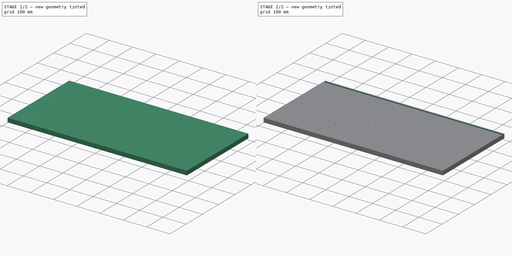
[diagram: build sequence overview — one tinted view per stage of 2, left to right]
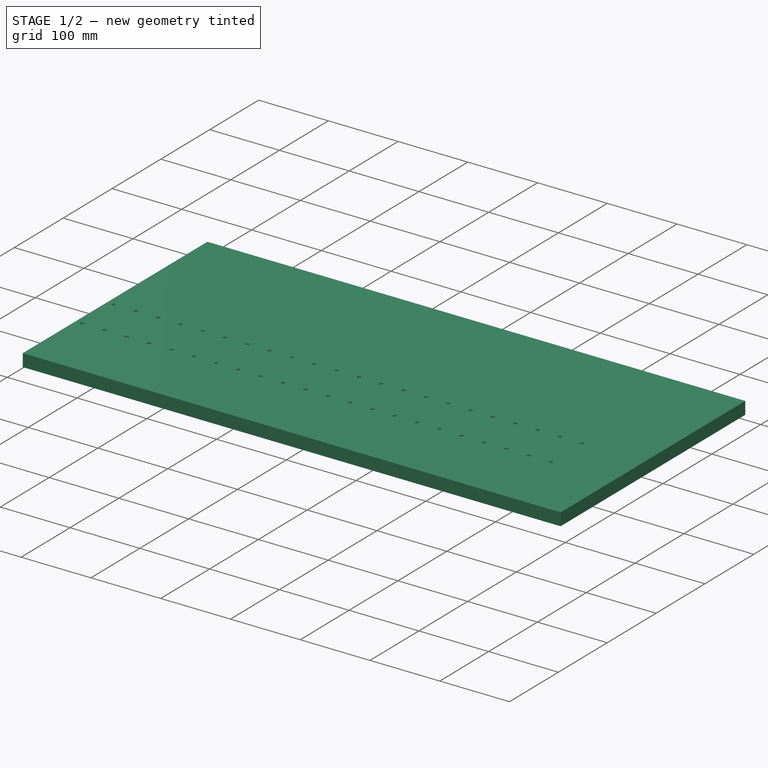
[diagram: stage 1 of 2 — iso view after this stage's code; geometry added in this stage tinted green]
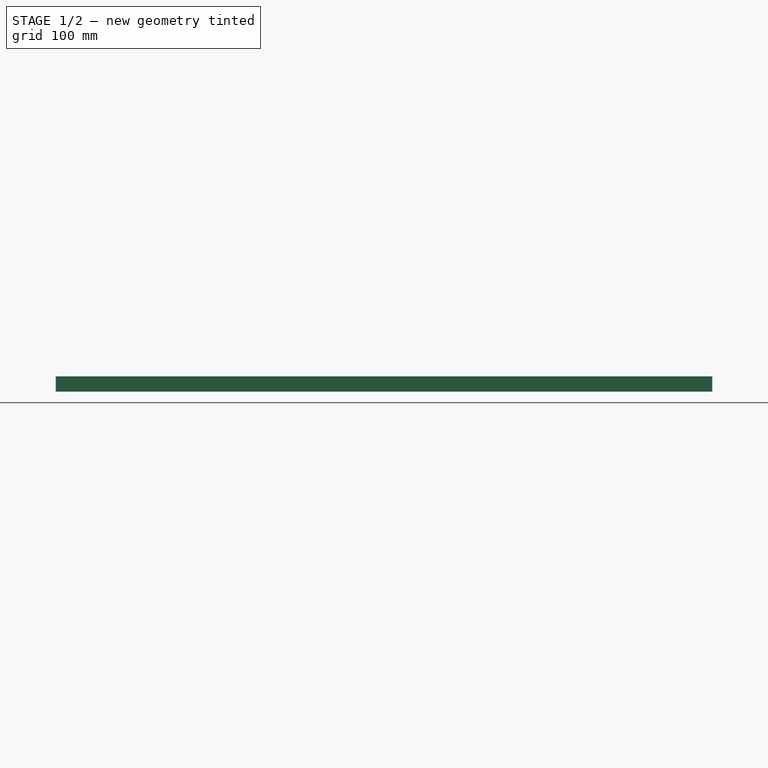
[diagram: stage 1 of 2 — front view after this stage's code; geometry added in this stage tinted green]
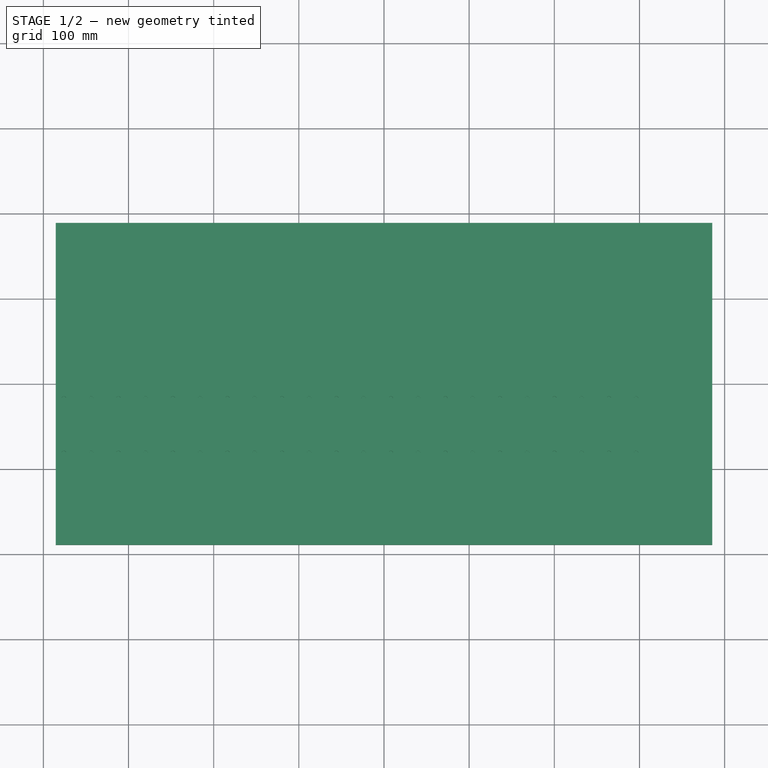
[diagram: stage 1 of 2 — top view after this stage's code; geometry added in this stage tinted green]
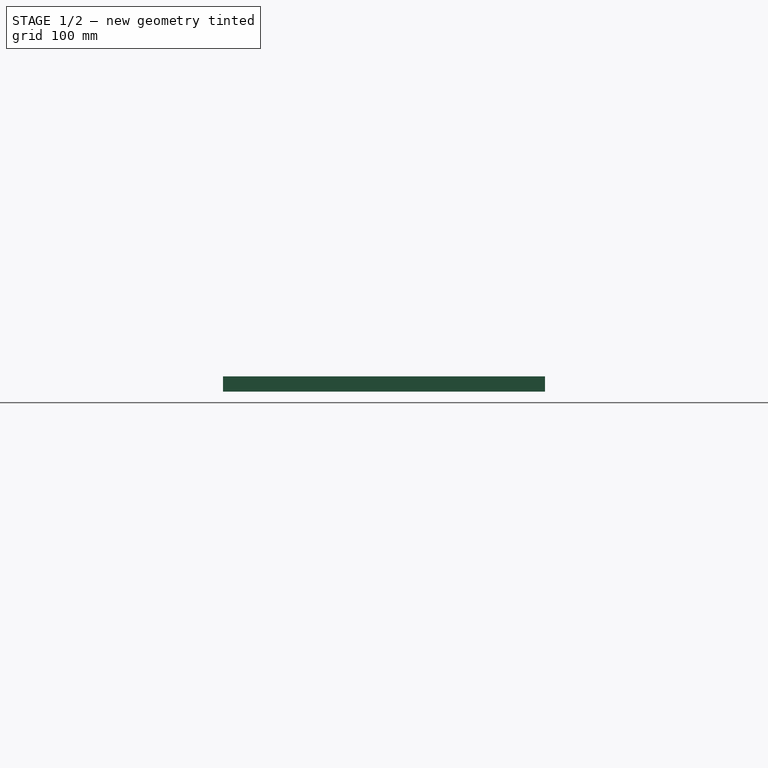
[diagram: stage 1 of 2 — right view after this stage's code; geometry added in this stage tinted green]
FCSTD DOCUMENT  (FreeCAD 1.0R39109 (Git))
Label: 73_drawer_box_side_b
License: All rights reserved
LicenseURL: http://en.wikipedia.org/wiki/All_rights_reserved
objects: Sketcher::SketchObject×3, PartDesign::Pocket×2, Spreadsheet::Sheet×1, PartDesign::Pad×1, PartDesign::Body×1
note: 16 computed .brp shape members not serialized (recipe doc carries the construction recipe); baked Part::Feature solids carry a one-line shape summary decoded from their .brp

FEATURE [Spreadsheet::Sheet] Spreadsheet
  cells = A2='length; B2(length)=771; A3='width; B3(width)=378; A4='height; B4(height)=18; A5='euro32Distance; B5(euro32Distance)=32; A6='euro32Holedia; B6(euro32Holedia)=5
FEATURE [Sketcher::SketchObject] Sketch
  ArcFitTolerance = 0
  AttachmentSupport = -> [XY_Plane]
  FullyConstrained = true
  MakeInternals = false
  MapMode = 5
  expr: Constraints[11] = Spreadsheet.length
  expr: Constraints[12] = Spreadsheet.width
  sketch-geometry (5):
    g0: LineSegment StartX=-385.5 StartY=189 StartZ=0 EndX=385.5 EndY=189 EndZ=0
    g1: LineSegment StartX=385.5 StartY=189 StartZ=0 EndX=385.5 EndY=-189 EndZ=0
    g2: LineSegment StartX=385.5 StartY=-189 StartZ=0 EndX=-385.5 EndY=-189 EndZ=0
    g3: LineSegment StartX=-385.5 StartY=-189 StartZ=0 EndX=-385.5 EndY=189 EndZ=0
    g4: LineSegment [constr] StartX=-385.5 StartY=189 StartZ=0 EndX=385.5 EndY=-189 EndZ=0
  constraints (13):
    c: Coincident(g0,g1)
    c: Coincident(g1,g2)
    c: Coincident(g2,g3)
    c: Coincident(g3,g0)
    c: Horizontal(g0)
    c: Horizontal(g2)
    c: Vertical(g1)
    c: Vertical(g3)
    c: Coincident(g4,g1)
    c: Coincident(g0,g4)
    c: Symmetric(g0,g1,g-1)
    c: Distance(g0,g0) = 771
    c: Distance(g0,g2) = 378
FEATURE [PartDesign::Pad] Pad
  Direction = (0,0,1)
  Length = 18
  Length2 = 10
  Profile = -> Sketch
  ReferenceAxis = -> Sketch [N_Axis]
  Suppressed = false
  Type = 0
  expr: Length = Spreadsheet.height
FEATURE [Sketcher::SketchObject] Sketch001
  ArcFitTolerance = 1e-06
  AttachmentOffset = pos=(0,0,9) rot=(0,0,1;0rad)
  AttachmentSupport = -> [XY_Plane]
  ExternalGeometry = -> [Pad]
  FullyConstrained = true
  MakeInternals = false
  MapMode = 5
  Placement = pos=(0,0,9) rot=(0,0,1;0rad)
  expr: Constraints[102] = Spreadsheet.euro32Distance
  expr: Constraints[103] = Spreadsheet.euro32Distance
  expr: Constraints[104] = Spreadsheet.euro32Distance
  expr: Constraints[105] = Spreadsheet.euro32Distance
  expr: Constraints[106] = Spreadsheet.euro32Distance
  expr: Constraints[107] = Spreadsheet.euro32Distance
  expr: Constraints[108] = Spreadsheet.euro32Distance
  expr: Constraints[109] = Spreadsheet.euro32Distance
  expr: Constraints[10] = Spreadsheet.euro32Holedia
  expr: Constraints[110] = Spreadsheet.euro32Distance
  expr: Constraints[111] = Spreadsheet.euro32Distance
  expr: Constraints[112] = 32 mm
  expr: Constraints[113] = Spreadsheet.euro32Distance
  expr: Constraints[114] = Spreadsheet.euro32Distance
  expr: Constraints[115] = Spreadsheet.euro32Distance
  expr: Constraints[116] = Spreadsheet.euro32Distance
  expr: Constraints[117] = Spreadsheet.euro32Distance
  expr: Constraints[118] = Spreadsheet.euro32Distance
  expr: Constraints[119] = Spreadsheet.euro32Distance
  expr: Constraints[11] = Spreadsheet.euro32Holedia
  expr: Constraints[120] = Spreadsheet.euro32Distance
  expr: Constraints[12] = Spreadsheet.euro32Holedia
  expr: Constraints[13] = Spreadsheet.euro32Holedia
  expr: Constraints[14] = Spreadsheet.euro32Holedia
  expr: Constraints[15] = Spreadsheet.euro32Holedia
  expr: Constraints[16] = Spreadsheet.euro32Holedia
  expr: Constraints[17] = Spreadsheet.euro32Holedia
  expr: Constraints[18] = Spreadsheet.euro32Holedia
  expr: Constraints[19] = Spreadsheet.euro32Holedia
  expr: Constraints[22] = Spreadsheet.euro32Distance
  expr: Constraints[23] = Spreadsheet.euro32Holedia
  expr: Constraints[24] = Spreadsheet.euro32Distance
  expr: Constraints[44] = Spreadsheet.euro32Holedia
  expr: Constraints[45] = Spreadsheet.euro32Holedia
  expr: Constraints[46] = Spreadsheet.euro32Holedia
  expr: Constraints[47] = Spreadsheet.euro32Holedia
  expr: Constraints[48] = Spreadsheet.euro32Holedia
  expr: Constraints[49] = Spreadsheet.euro32Holedia
  expr: Constraints[4] = Spreadsheet.euro32Holedia
  expr: Constraints[50] = Spreadsheet.euro32Distance
  expr: Constraints[51] = Spreadsheet.euro32Distance
  expr: Constraints[52] = Spreadsheet.euro32Distance
  expr: Constraints[53] = Spreadsheet.euro32Distance
  expr: Constraints[54] = Spreadsheet.euro32Distance
  expr: Constraints[55] = Spreadsheet.euro32Distance
  expr: Constraints[56] = Spreadsheet.euro32Distance
  expr: Constraints[57] = Spreadsheet.euro32Distance
  expr: Constraints[58] = Spreadsheet.euro32Distance
  expr: Constraints[59] = Spreadsheet.euro32Distance
  expr: Constraints[60] = Spreadsheet.euro32Distance
  expr: Constraints[61] = Spreadsheet.euro32Distance
  expr: Constraints[62] = Spreadsheet.euro32Distance
  expr: Constraints[63] = Spreadsheet.euro32Distance
  expr: Constraints[64] = Spreadsheet.euro32Distance
  expr: Constraints[65] = Spreadsheet.euro32Distance
  expr: Constraints[66] = Spreadsheet.euro32Distance
  expr: Constraints[67] = Spreadsheet.euro32Distance
  expr: Constraints[68] = Spreadsheet.euro32Distance
  expr: Constraints[6] = Spreadsheet.euro32Holedia
  expr: Constraints[75] = Spreadsheet.euro32Holedia
  expr: Constraints[7] = Spreadsheet.euro32Holedia
  expr: Constraints[80] = Spreadsheet.euro32Distance
  expr: Constraints[81] = Spreadsheet.euro32Distance
  expr: Constraints[8] = Spreadsheet.euro32Holedia
  expr: Constraints[9] = Spreadsheet.euro32Holedia
  sketch-geometry (46):
    g0: LineSegment [constr] StartX=-385.5 StartY=-81 StartZ=0 EndX=385.5 EndY=-81 EndZ=0
    g1: Circle CenterX=-376 CenterY=-81 CenterZ=0 NormalX=0 NormalY=0 NormalZ=1 AngleXU=0 Radius=2.5
    g2: Circle CenterX=-344 CenterY=-81 CenterZ=0 NormalX=0 NormalY=0 NormalZ=1 AngleXU=0 Radius=2.5
    g3: Circle CenterX=-312 CenterY=-81 CenterZ=0 NormalX=0 NormalY=0 NormalZ=1 AngleXU=0 Radius=2.5
    g4: Circle CenterX=-280 CenterY=-81 CenterZ=0 NormalX=0 NormalY=0 NormalZ=1 AngleXU=0 Radius=2.5
    g5: Circle CenterX=-248 CenterY=-81 CenterZ=0 NormalX=0 NormalY=0 NormalZ=1 AngleXU=0 Radius=2.5
    g6: Circle CenterX=-216 CenterY=-81 CenterZ=0 NormalX=0 NormalY=0 NormalZ=1 AngleXU=0 Radius=2.5
    g7: Circle CenterX=-184 CenterY=-81 CenterZ=0 NormalX=0 NormalY=0 NormalZ=1 AngleXU=0 Radius=2.5
    g8: Circle CenterX=-152 CenterY=-81 CenterZ=0 NormalX=0 NormalY=0 NormalZ=1 AngleXU=0 Radius=2.5
    g9: Circle CenterX=-120 CenterY=-81 CenterZ=0 NormalX=0 NormalY=0 NormalZ=1 AngleXU=0 Radius=2.5
    g10: Circle CenterX=-88 CenterY=-81 CenterZ=0 NormalX=0 NormalY=0 NormalZ=1 AngleXU=0 Radius=2.5
    g11: Circle CenterX=-56 CenterY=-81 CenterZ=0 NormalX=0 NormalY=0 NormalZ=1 AngleXU=0 Radius=2.5
    g12: Circle CenterX=-24 CenterY=-81 CenterZ=0 NormalX=0 NormalY=0 NormalZ=1 AngleXU=0 Radius=2.5
    g13: Circle CenterX=8 CenterY=-81 CenterZ=0 NormalX=0 NormalY=0 NormalZ=1 AngleXU=0 Radius=2.5
    g14: Circle CenterX=40 CenterY=-81 CenterZ=0 NormalX=0 NormalY=0 NormalZ=1 AngleXU=0 Radius=2.5
    g15: Circle CenterX=72 CenterY=-81 CenterZ=0 NormalX=0 NormalY=0 NormalZ=1 AngleXU=0 Radius=2.5
    g16: Circle CenterX=104 CenterY=-81 CenterZ=0 NormalX=0 NormalY=0 NormalZ=1 AngleXU=0 Radius=2.5
    g17: Circle CenterX=136 CenterY=-81 CenterZ=0 NormalX=0 NormalY=0 NormalZ=1 AngleXU=0 Radius=2.5
    g18: Circle CenterX=168 CenterY=-81 CenterZ=0 NormalX=0 NormalY=0 NormalZ=1 AngleXU=0 Radius=2.5
    g19: Circle CenterX=200 CenterY=-81 CenterZ=0 NormalX=0 NormalY=0 NormalZ=1 AngleXU=0 Radius=2.5
    g20: Circle CenterX=232 CenterY=-81 CenterZ=0 NormalX=0 NormalY=0 NormalZ=1 AngleXU=0 Radius=2.5
    g21: Circle CenterX=264 CenterY=-81 CenterZ=0 NormalX=0 NormalY=0 NormalZ=1 AngleXU=0 Radius=2.5
    g22: Circle CenterX=296 CenterY=-81 CenterZ=0 NormalX=0 NormalY=0 NormalZ=1 AngleXU=0 Radius=2.5
    g23: LineSegment [constr] StartX=-385.5 StartY=-17 StartZ=0 EndX=385.5 EndY=-17 EndZ=0
    g24: Circle CenterX=-376 CenterY=-17 CenterZ=0 NormalX=0 NormalY=0 NormalZ=1 AngleXU=0 Radius=2.5
    g25: Circle CenterX=-344 CenterY=-17 CenterZ=0 NormalX=0 NormalY=0 NormalZ=1 AngleXU=0 Radius=2.5
    g26: Circle CenterX=-312 CenterY=-17 CenterZ=0 NormalX=0 NormalY=0 NormalZ=1 AngleXU=0 Radius=2.5
    g27: Circle CenterX=-280 CenterY=-17 CenterZ=0 NormalX=0 NormalY=0 NormalZ=1 AngleXU=0 Radius=2.5
    g28: Circle CenterX=-248 CenterY=-17 CenterZ=0 NormalX=0 NormalY=0 NormalZ=1 AngleXU=0 Radius=2.5
    g29: Circle CenterX=-216 CenterY=-17 CenterZ=0 NormalX=0 NormalY=0 NormalZ=1 AngleXU=0 Radius=2.5
    g30: Circle CenterX=-184 CenterY=-17 CenterZ=0 NormalX=0 NormalY=0 NormalZ=1 AngleXU=0 Radius=2.5
    g31: Circle CenterX=-152 CenterY=-17 CenterZ=0 NormalX=0 NormalY=0 NormalZ=1 AngleXU=0 Radius=2.5
    g32: Circle CenterX=-120 CenterY=-17 CenterZ=0 NormalX=0 NormalY=0 NormalZ=1 AngleXU=0 Radius=2.5
    g33: Circle CenterX=-88 CenterY=-17 CenterZ=0 NormalX=0 NormalY=0 NormalZ=1 AngleXU=0 Radius=2.5
    g34: Circle CenterX=-56 CenterY=-17 CenterZ=0 NormalX=0 NormalY=0 NormalZ=1 AngleXU=0 Radius=2.5
    g35: Circle CenterX=-24 CenterY=-17 CenterZ=0 NormalX=0 NormalY=0 NormalZ=1 AngleXU=0 Radius=2.5
    g36: Circle CenterX=8 CenterY=-17 CenterZ=0 NormalX=0 NormalY=0 NormalZ=1 AngleXU=0 Radius=2.5
    g37: Circle CenterX=40 CenterY=-17 CenterZ=0 NormalX=0 NormalY=0 NormalZ=1 AngleXU=0 Radius=2.5
    g38: Circle CenterX=72 CenterY=-17 CenterZ=0 NormalX=0 NormalY=0 NormalZ=1 AngleXU=0 Radius=2.5
    g39: Circle CenterX=104 CenterY=-17 CenterZ=0 NormalX=0 NormalY=0 NormalZ=1 AngleXU=0 Radius=2.5
    g40: Circle CenterX=136 CenterY=-17 CenterZ=0 NormalX=0 NormalY=0 NormalZ=1 AngleXU=0 Radius=2.5
    g41: Circle CenterX=168 CenterY=-17 CenterZ=0 NormalX=0 NormalY=0 NormalZ=1 AngleXU=0 Radius=2.5
    g42: Circle CenterX=200 CenterY=-17 CenterZ=0 NormalX=0 NormalY=0 NormalZ=1 AngleXU=0 Radius=2.5
    g43: Circle CenterX=232 CenterY=-17 CenterZ=0 NormalX=0 NormalY=0 NormalZ=1 AngleXU=0 Radius=2.5
    g44: Circle CenterX=264 CenterY=-17 CenterZ=0 NormalX=0 NormalY=0 NormalZ=1 AngleXU=0 Radius=2.5
    g45: Circle CenterX=296 CenterY=-17 CenterZ=0 NormalX=0 NormalY=0 NormalZ=1 AngleXU=0 Radius=2.5
  constraints (140):
    c: PointOnObject(g0,g-3)
    c: PointOnObject(g0,g-4)
    c: Horizontal(g0)
    c: PointOnObject(g1,g0)
    c: Diameter(g1) = 5
    c: Distance(g1,g-3) = 9.5
    c: Diameter(g9) = 5
    c: Diameter(g10) = 5
    c: Diameter(g11) = 5
    c: Diameter(g12) = 5
    c: Diameter(g13) = 5
    c: Diameter(g14) = 5
    c: Diameter(g15) = 5
    c: Diameter(g16) = 5
    c: Diameter(g17) = 5
    c: Diameter(g18) = 5
    c: Diameter(g19) = 5
    c: Diameter(g20) = 5
    c: Diameter(g21) = 5
    c: Diameter(g22) = 5
    c: PointOnObject(g2,g0)
    c: PointOnObject(g3,g0)
    c: DistanceX(g1,g2) = 32
    c: Diameter(g2) = 5
    c: DistanceX(g2,g3) = 32
    c: PointOnObject(g4,g0)
    c: PointOnObject(g5,g0)
    c: PointOnObject(g6,g0)
    c: PointOnObject(g7,g0)
    c: PointOnObject(g8,g0)
    c: PointOnObject(g9,g0)
    c: PointOnObject(g10,g0)
    c: PointOnObject(g11,g0)
    c: PointOnObject(g12,g0)
    c: PointOnObject(g13,g0)
    c: PointOnObject(g14,g0)
    c: PointOnObject(g15,g0)
    c: PointOnObject(g16,g0)
    c: PointOnObject(g17,g0)
    c: PointOnObject(g18,g0)
    c: PointOnObject(g19,g0)
    c: PointOnObject(g20,g0)
    c: PointOnObject(g21,g0)
    c: PointOnObject(g22,g0)
    c: Diameter(g8) = 5
    c: Diameter(g7) = 5
    c: Diameter(g6) = 5
    c: Diameter(g5) = 5
    c: Diameter(g4) = 5
    c: Diameter(g3) = 5
    c: DistanceX(g3,g4) = 32
    c: DistanceX(g4,g5) = 32
    c: DistanceX(g5,g6) = 32
    c: DistanceX(g6,g7) = 32
    c: DistanceX(g7,g8) = 32
    c: DistanceX(g8,g9) = 32
    c: DistanceX(g9,g10) = 32
    c: DistanceX(g10,g11) = 32
    c: DistanceX(g11,g12) = 32
    c: DistanceX(g12,g13) = 32
    c: DistanceX(g13,g14) = 32
    c: DistanceX(g14,g15) = 32
    c: DistanceX(g15,g16) = 32
    c: DistanceX(g16,g17) = 32
    c: DistanceX(g17,g18) = 32
    c: DistanceX(g18,g19) = 32
    c: DistanceX(g19,g20) = 32
    c: DistanceX(g20,g21) = 32
    c: DistanceX(g21,g22) = 32
    c: DistanceY(g-3,g0) = 108
    c: PointOnObject(g23,g-3)
    c: PointOnObject(g23,g-4)
    c: Horizontal(g23)
    c: Distance(g0,g23) = 64
    c: PointOnObject(g24,g23)
    c: Diameter(g24) = 5
    c: Equal(g24,g25)
    c: Equal(g24,g26)
    c: PointOnObject(g25,g23)
    c: PointOnObject(g26,g23)
    c: Distance(g24,g25) = 32
    c: DistanceX(g25,g26) = 32
    c: Distance(g24,g-3) = 9.5
    c: Equal(g27,g24)
    c: Equal(g28,g24)
    c: Equal(g29,g24)
    c: Equal(g30,g24)
    c: Equal(g31,g24)
    c: Equal(g32,g24)
    c: Equal(g33,g24)
    c: Equal(g34,g24)
    c: Equal(g35,g24)
    c: Equal(g36,g24)
    c: Equal(g37,g24)
    c: Equal(g38,g24)
    c: Equal(g39,g24)
    c: Equal(g40,g24)
    c: Equal(g41,g24)
    c: Equal(g42,g24)
    c: Equal(g43,g24)
    c: Equal(g44,g24)
    c: Equal(g45,g24)
    c: Distance(g26,g27) = 32
    c: DistanceX(g27,g28) = 32
    c: Distance(g28,g29) = 32
    c: Distance(g29,g30) = 32
    c: Distance(g30,g31) = 32
    c: Distance(g31,g32) = 32
    c: Distance(g32,g33) = 32
    c: Distance(g33,g34) = 32
    c: Distance(g34,g35) = 32
    c: Distance(g35,g36) = 32
    c: Distance(g36,g37) = 32
    c: DistanceX(g37,g38) = 32
    c: DistanceX(g38,g39) = 32
    c: Distance(g39,g40) = 32
    c: Distance(g40,g41) = 32
    c: Distance(g42,g41) = 32
    c: Distance(g43,g42) = 32
    c: Distance(g44,g43) = 32
    c: DistanceX(g44,g45) = 32
    c: PointOnObject(g27,g23)
    c: PointOnObject(g28,g23)
    c: PointOnObject(g29,g23)
    c: PointOnObject(g30,g23)
    c: PointOnObject(g31,g23)
    c: PointOnObject(g32,g23)
    c: PointOnObject(g33,g23)
    c: PointOnObject(g34,g23)
    c: PointOnObject(g35,g23)
    c: PointOnObject(g36,g23)
    c: PointOnObject(g37,g23)
    c: PointOnObject(g38,g23)
    c: PointOnObject(g39,g23)
    c: PointOnObject(g40,g23)
    c: PointOnObject(g41,g23)
    c: PointOnObject(g42,g23)
    c: PointOnObject(g43,g23)
    c: PointOnObject(g44,g23)
    c: PointOnObject(g45,g23)
FEATURE [PartDesign::Pocket] Pocket
  BaseFeature = -> Pad
  Direction = (0,0,-1)
  Length = 9
  Length2 = 5
  Profile = -> Sketch001
  ReferenceAxis = -> Sketch001 [N_Axis]
  Reversed = true
  Suppressed = false
  Type = 0
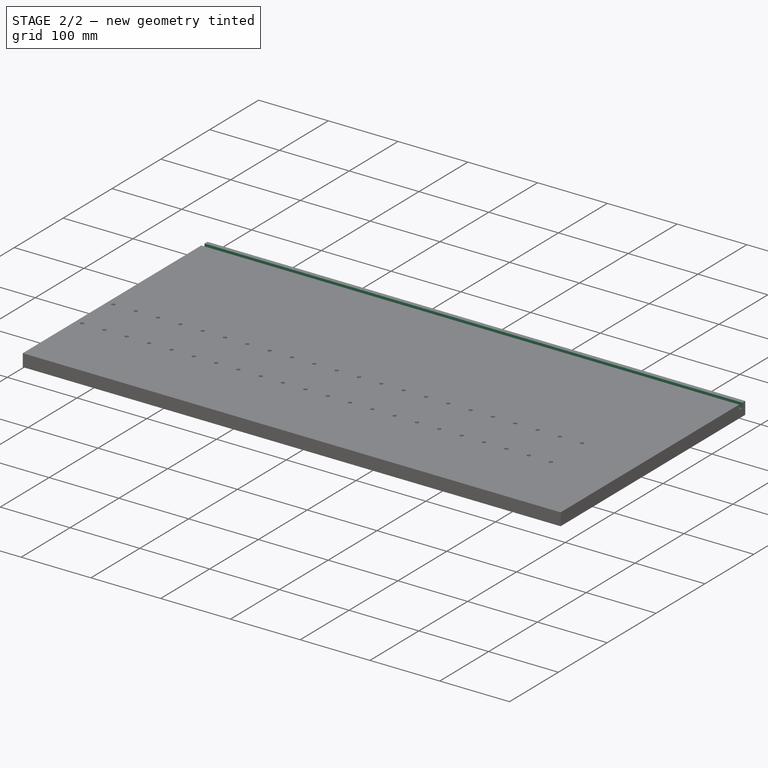
[diagram: stage 2 of 2 — iso view after this stage's code; geometry added in this stage tinted green]
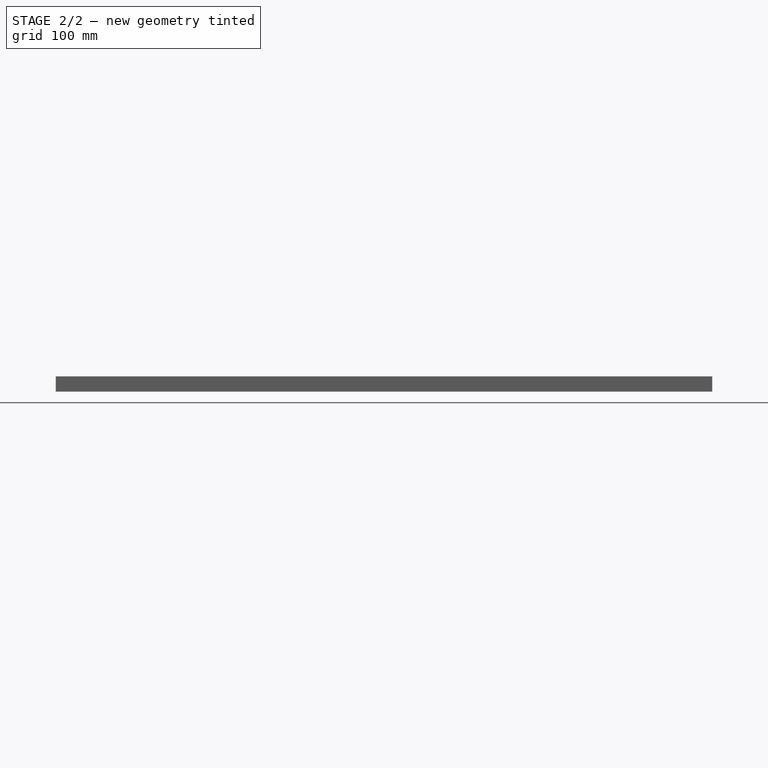
[diagram: stage 2 of 2 — front view after this stage's code; geometry added in this stage tinted green]
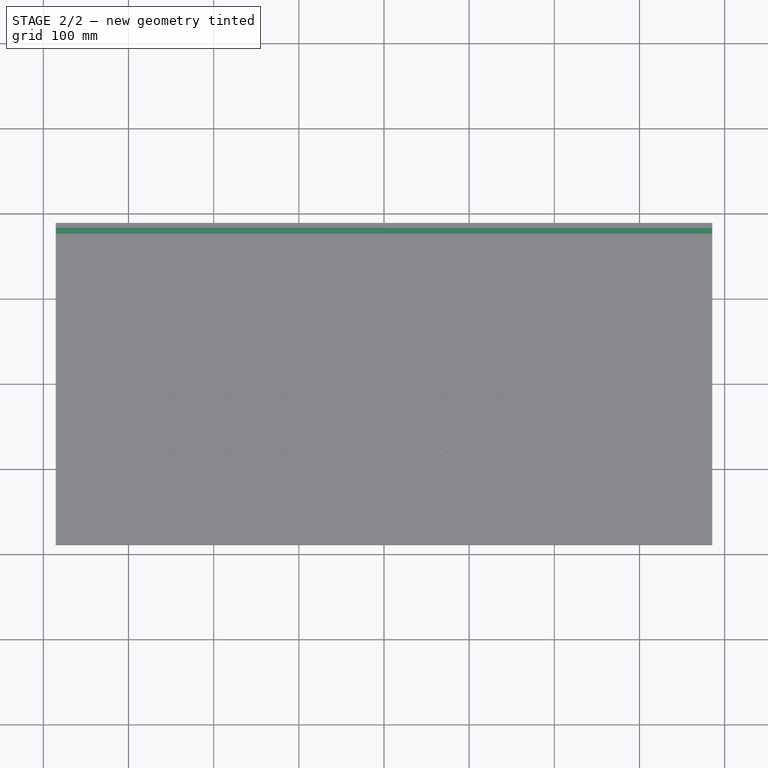
[diagram: stage 2 of 2 — top view after this stage's code; geometry added in this stage tinted green]
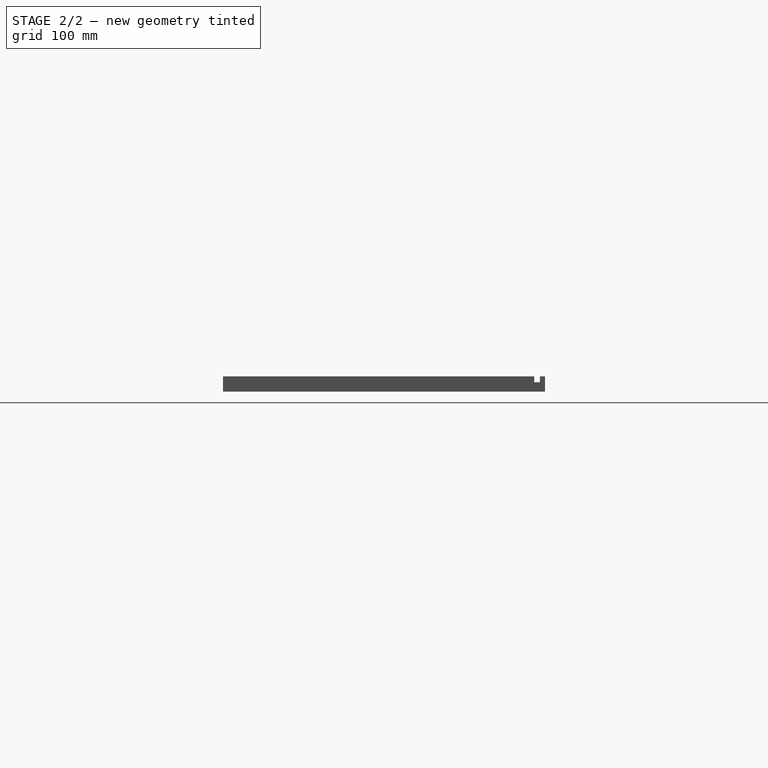
[diagram: stage 2 of 2 — right view after this stage's code; geometry added in this stage tinted green]
FEATURE [Sketcher::SketchObject] Sketch003
  ArcFitTolerance = 1e-06
  AttachmentSupport = -> [YZ_Plane]
  ExternalGeometry = -> [Pocket]
  FullyConstrained = true
  MakeInternals = false
  MapMode = 5
  Placement = pos=(0,0,0) rot=(0.57735,0.57735,0.57735;2.0944rad)
  sketch-geometry (4):
    g0: LineSegment StartX=176.5 StartY=18 StartZ=0 EndX=176.5 EndY=11 EndZ=0
    g1: LineSegment StartX=176.5 StartY=11 StartZ=0 EndX=183 EndY=11 EndZ=0
    g2: LineSegment StartX=183 StartY=11 StartZ=0 EndX=183 EndY=18 EndZ=0
    g3: LineSegment StartX=183 StartY=18 StartZ=0 EndX=176.5 EndY=18 EndZ=0
  constraints (12):
    c: Coincident(g0,g1)
    c: Coincident(g1,g2)
    c: Coincident(g2,g3)
    c: Coincident(g3,g0)
    c: Vertical(g0)
    c: Vertical(g2)
    c: Horizontal(g1)
    c: Horizontal(g3)
    c: PointOnObject(g0,g-3)
    c: DistanceY(g0,g0) = 7
    c: Distance(g-4,g2) = 6
    c: Distance(g3,g3) = 6.5
FEATURE [PartDesign::Pocket] Pocket001
  BaseFeature = -> Pocket
  Direction = (-1,0,0)
  Length = 505
  Length2 = 505
  Profile = -> Sketch003
  ReferenceAxis = -> Sketch003 [N_Axis]
  Suppressed = false
  Type = 4
FEATURE [PartDesign::Body] Body
  AllowCompound = false
  Group = -> [Sketch,Pad,Sketch001,Pocket,Sketch003,Pocket001]
  Origin = -> Origin
  Tip = -> Pocket001
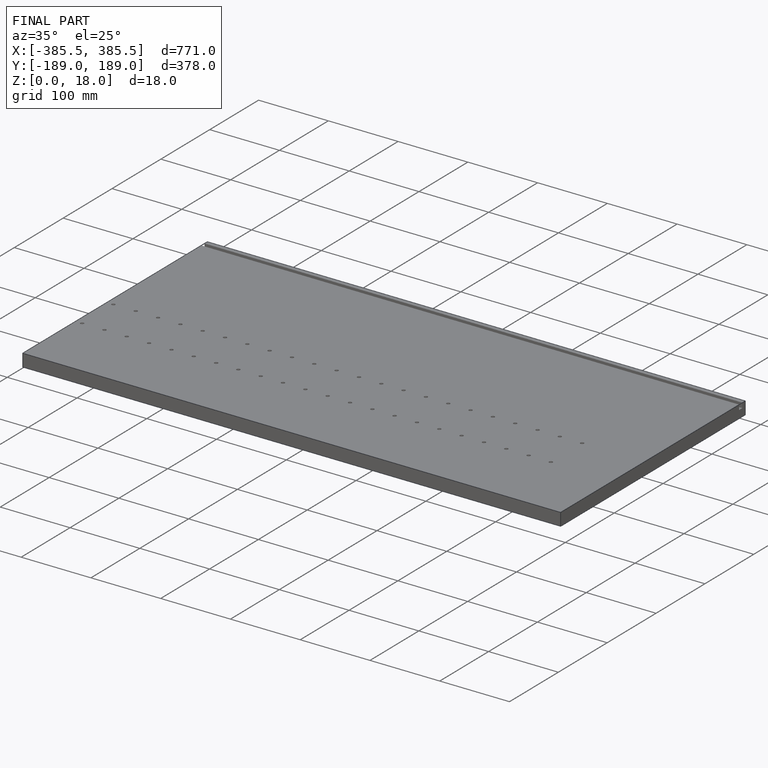
[diagram: finished part — iso view with bounding-box wireframe]
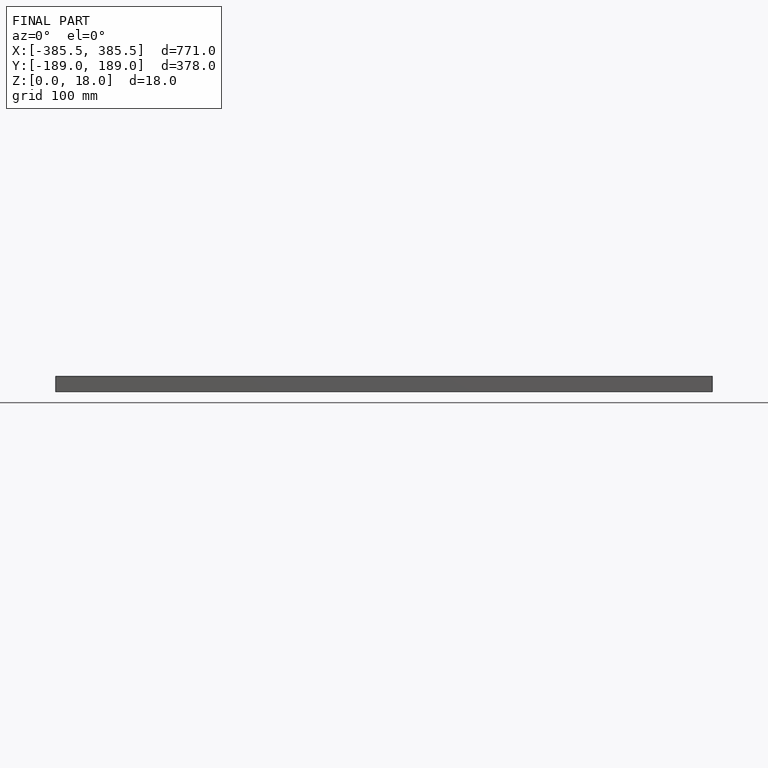
[diagram: finished part — front view with bounding-box wireframe]
